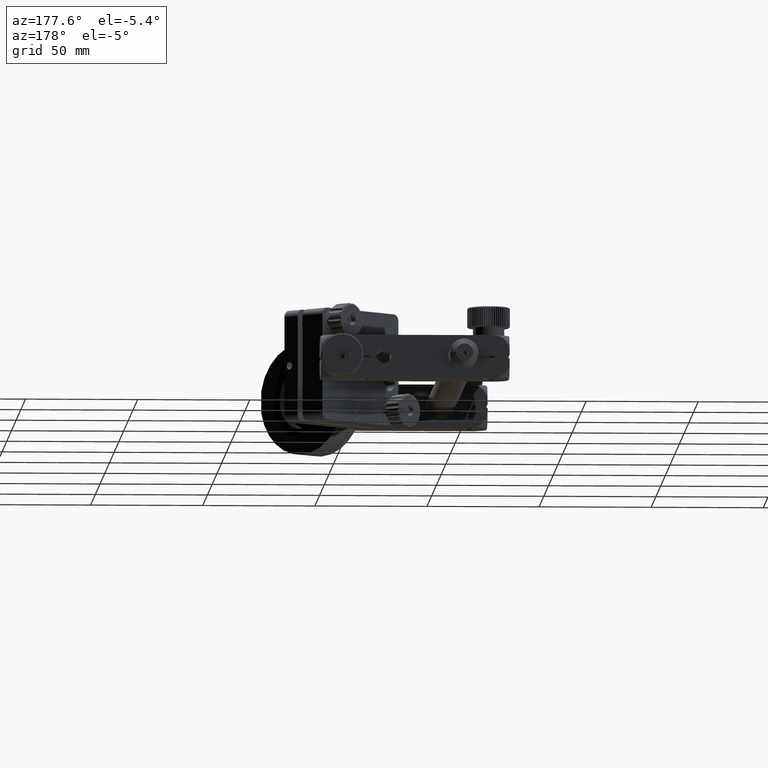
[diagram: clean part render]
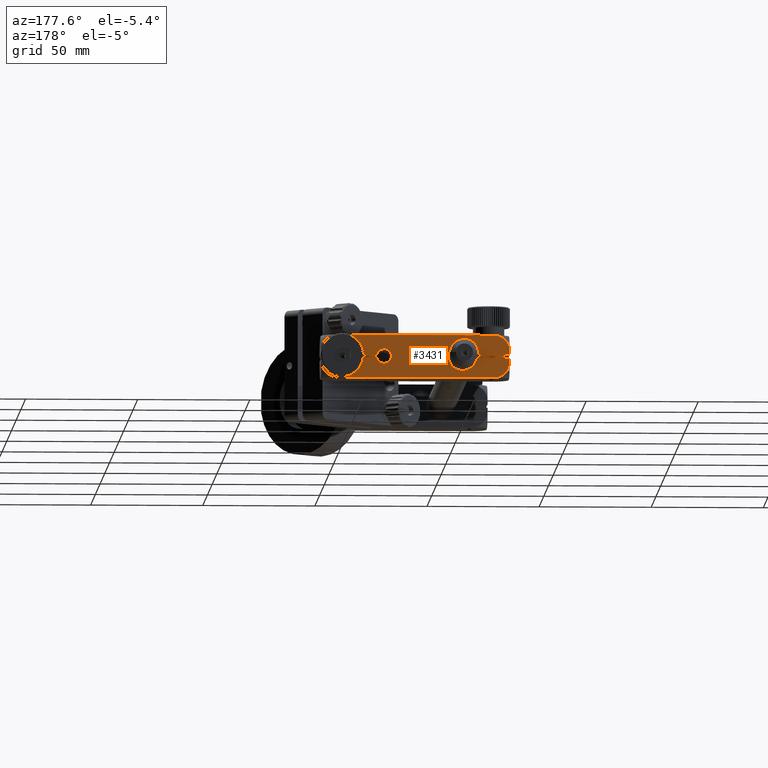
[diagram: same view with one face highlighted and labeled with its STEP entity id]
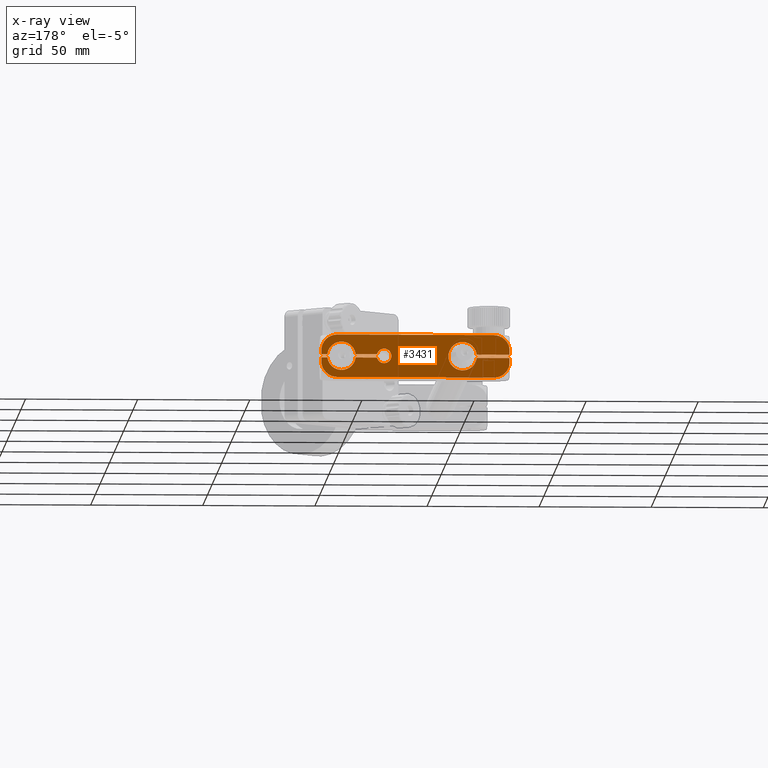
[diagram: x-ray of the same camera — body ghosted, the highlighted face saturated]
A machine part, auxiliary view. The second image highlights one B-rep face of the part: STEP entity #3431.
The next image is the same camera in x-ray: the body ghosted, the highlighted face saturated — about 0% of this face is hidden behind the body in this view.
In plain terms, the highlighted planar face has unit normal (0, -1, 0).
Its self-contained STEP definition (entity closure, byte-faithful):
#73 = VERTEX_POINT ( 'NONE', #27213 ) ;
#155 = VECTOR ( 'NONE', #24674, 1000.000000000000000 ) ;
#686 = ORIENTED_EDGE ( 'NONE', *, *, #20789, .F. ) ;
#1174 = CIRCLE ( 'NONE', #46065, 6.350000000000001400 ) ;
#1353 = EDGE_CURVE ( 'NONE', #16267, #17290, #13387, .T. ) ;
#1825 = ORIENTED_EDGE ( 'NONE', *, *, #6983, .F. ) ;
#1932 = ORIENTED_EDGE ( 'NONE', *, *, #9368, .F. ) ;
#2099 = DIRECTION ( 'NONE',  ( 0.0000000000000000000, 0.0000000000000000000, -1.000000000000000000 ) ) ;
#2274 = ORIENTED_EDGE ( 'NONE', *, *, #29876, .F. ) ;
#2321 = LINE ( 'NONE', #37663, #40796 ) ;
#2454 = PLANE ( 'NONE',  #22497 ) ;
#2518 = VECTOR ( 'NONE', #20952, 1000.000000000000000 ) ;
#2850 = DIRECTION ( 'NONE',  ( 0.0000000000000000000, 0.0000000000000000000, -1.000000000000000000 ) ) ;
#3141 = CARTESIAN_POINT ( 'NONE',  ( 35.00000000000000000, 378.9634782757152600, -2.203869509387566800E-013 ) ) ;
#3348 = DIRECTION ( 'NONE',  ( 0.0000000000000000000, 1.000000000000000000, 0.0000000000000000000 ) ) ;
#3368 = VECTOR ( 'NONE', #43156, 1000.000000000000000 ) ;
#3431 = ADVANCED_FACE ( 'NONE', ( #16215 ), #2454, .F. ) ;
#3454 = CIRCLE ( 'NONE', #44990, 6.350000000000001400 ) ;
#3557 = EDGE_CURVE ( 'NONE', #35898, #20543, #3454, .T. ) ;
#3667 = VERTEX_POINT ( 'NONE', #19870 ) ;
#3976 = CARTESIAN_POINT ( 'NONE',  ( 38.16227766016838500, 378.9634782757152600, -0.7500000000002136100 ) ) ;
#3981 = DIRECTION ( 'NONE',  ( 0.0000000000000000000, -1.000000000000000000, 0.0000000000000000000 ) ) ;
#4342 = DIRECTION ( 'NONE',  ( -0.0000000000000000000, -0.0000000000000000000, -1.000000000000000000 ) ) ;
#4632 = VERTEX_POINT ( 'NONE', #31867 ) ;
#4843 = CIRCLE ( 'NONE', #19032, 3.250000000000001300 ) ;
#5193 = DIRECTION ( 'NONE',  ( 0.0000000000000000000, 1.000000000000000000, 0.0000000000000000000 ) ) ;
#5578 = DIRECTION ( 'NONE',  ( 1.000000000000000000, 0.0000000000000000000, 0.0000000000000000000 ) ) ;
#5679 = CARTESIAN_POINT ( 'NONE',  ( 60.92893218813449600, 378.9634782757152600, 7.428932188134345100 ) ) ;
#5964 = ORIENTED_EDGE ( 'NONE', *, *, #15962, .T. ) ;
#6036 = ORIENTED_EDGE ( 'NONE', *, *, #9998, .F. ) ;
#6041 = ORIENTED_EDGE ( 'NONE', *, *, #18156, .F. ) ;
#6135 = EDGE_CURVE ( 'NONE', #33138, #4632, #34138, .T. ) ;
#6331 = EDGE_CURVE ( 'NONE', #27148, #29983, #16344, .T. ) ;
#6722 = AXIS2_PLACEMENT_3D ( 'NONE', #31456, #15893, #20117 ) ;
#6793 = VERTEX_POINT ( 'NONE', #40424 ) ;
#6856 = EDGE_CURVE ( 'NONE', #29983, #43492, #2321, .T. ) ;
#6983 = EDGE_CURVE ( 'NONE', #3667, #38706, #22091, .T. ) ;
#7066 = EDGE_CURVE ( 'NONE', #48289, #35898, #37864, .T. ) ;
#7375 = DIRECTION ( 'NONE',  ( 0.0000000000000000000, 0.0000000000000000000, 1.000000000000000000 ) ) ;
#7789 = CARTESIAN_POINT ( 'NONE',  ( 55.92893218813449600, 378.9634782757152600, 2.428932188134338400 ) ) ;
#8000 = CARTESIAN_POINT ( 'NONE',  ( 60.30555310817379000, 378.9634782757152600, 0.7499999999997877300 ) ) ;
#8143 = CARTESIAN_POINT ( 'NONE',  ( -21.00000000000000000, 378.9634782757152600, -0.7500000000002135000 ) ) ;
#8484 = VERTEX_POINT ( 'NONE', #41694 ) ;
#8776 = AXIS2_PLACEMENT_3D ( 'NONE', #9458, #29386, #47783 ) ;
#9291 = CARTESIAN_POINT ( 'NONE',  ( 0.0000000000000000000, 378.9634782757152600, 6.349999999999785600 ) ) ;
#9368 = EDGE_CURVE ( 'NONE', #43492, #3667, #10875, .T. ) ;
#9451 = EDGE_CURVE ( 'NONE', #73, #33138, #14973, .T. ) ;
#9458 = CARTESIAN_POINT ( 'NONE',  ( -13.92893218813448900, 378.9634782757152600, 2.428932188134338400 ) ) ;
#9998 = EDGE_CURVE ( 'NONE', #30004, #29827, #16636, .T. ) ;
#10875 = CIRCLE ( 'NONE', #38574, 7.071067811865467500 ) ;
#11219 = DIRECTION ( 'NONE',  ( 0.0000000000000000000, 0.0000000000000000000, 1.000000000000000000 ) ) ;
#11240 = CARTESIAN_POINT ( 'NONE',  ( -21.00000000000000000, 378.9634782757152600, -9.500000000000213200 ) ) ;
#11381 = DIRECTION ( 'NONE',  ( 0.0000000000000000000, 1.000000000000000000, 0.0000000000000000000 ) ) ;
#12376 = CARTESIAN_POINT ( 'NONE',  ( 35.00000000000000000, 378.9634782757152600, -2.203869509387566800E-013 ) ) ;
#12607 = EDGE_CURVE ( 'NONE', #46642, #18653, #34006, .T. ) ;
#12828 = AXIS2_PLACEMENT_3D ( 'NONE', #21075, #29109, #2850 ) ;
#13003 = DIRECTION ( 'NONE',  ( -0.0000000000000000000, -0.0000000000000000000, -1.000000000000000000 ) ) ;
#13387 = CIRCLE ( 'NONE', #22132, 7.071067811865467500 ) ;
#13610 = VERTEX_POINT ( 'NONE', #35051 ) ;
#14119 = AXIS2_PLACEMENT_3D ( 'NONE', #41708, #38286, #30336 ) ;
#14193 = CARTESIAN_POINT ( 'NONE',  ( 0.0000000000000000000, 378.9634782757152600, -2.161008287003783600E-013 ) ) ;
#14424 = AXIS2_PLACEMENT_3D ( 'NONE', #17416, #39295, #16933 ) ;
#14679 = LINE ( 'NONE', #21076, #155 ) ;
#14862 = DIRECTION ( 'NONE',  ( -1.000000000000000000, -0.0000000000000000000, -0.0000000000000000000 ) ) ;
#14973 = CIRCLE ( 'NONE', #6722, 7.071067811865467500 ) ;
#15025 = CARTESIAN_POINT ( 'NONE',  ( -6.305553108173777200, 378.9634782757152600, -0.7500000000002135000 ) ) ;
#15165 = DIRECTION ( 'NONE',  ( 0.0000000000000000000, 0.0000000000000000000, -1.000000000000000000 ) ) ;
#15266 = DIRECTION ( 'NONE',  ( 0.0000000000000000000, 0.0000000000000000000, -1.000000000000000000 ) ) ;
#15777 = DIRECTION ( 'NONE',  ( 0.0000000000000000000, 1.000000000000000000, 0.0000000000000000000 ) ) ;
#15893 = DIRECTION ( 'NONE',  ( 0.0000000000000000000, -1.000000000000000000, 0.0000000000000000000 ) ) ;
#15962 = EDGE_CURVE ( 'NONE', #46642, #4632, #31702, .T. ) ;
#16149 = EDGE_CURVE ( 'NONE', #6793, #8484, #22301, .T. ) ;
#16187 = ORIENTED_EDGE ( 'NONE', *, *, #9451, .F. ) ;
#16215 = FACE_OUTER_BOUND ( 'NONE', #37718, .T. ) ;
#16267 = VERTEX_POINT ( 'NONE', #5679 ) ;
#16344 = LINE ( 'NONE', #29581, #44958 ) ;
#16604 = DIRECTION ( 'NONE',  ( 0.0000000000000000000, 0.0000000000000000000, 1.000000000000000000 ) ) ;
#16626 = CARTESIAN_POINT ( 'NONE',  ( 60.30555310817379000, 378.9634782757152600, 0.7499999999997871700 ) ) ;
#16636 = LINE ( 'NONE', #16626, #31884 ) ;
#16694 = CIRCLE ( 'NONE', #30617, 3.250000000000001300 ) ;
#16799 = ORIENTED_EDGE ( 'NONE', *, *, #1353, .F. ) ;
#16933 = DIRECTION ( 'NONE',  ( 0.0000000000000000000, 0.0000000000000000000, 1.000000000000000000 ) ) ;
#17090 = CARTESIAN_POINT ( 'NONE',  ( 63.00000000000000000, 378.9634782757152000, 2.428932188134349100 ) ) ;
#17229 = CARTESIAN_POINT ( 'NONE',  ( -21.00000000000000000, 378.9634782757152600, 9.499999999999786800 ) ) ;
#17290 = VERTEX_POINT ( 'NONE', #28934 ) ;
#17416 = CARTESIAN_POINT ( 'NONE',  ( 54.00000000000000700, 378.9634782757152600, -2.227137030110192000E-013 ) ) ;
#17585 = ORIENTED_EDGE ( 'NONE', *, *, #19438, .T. ) ;
#17835 = AXIS2_PLACEMENT_3D ( 'NONE', #42194, #15777, #23790 ) ;
#18155 = EDGE_CURVE ( 'NONE', #73, #38706, #43117, .T. ) ;
#18156 = EDGE_CURVE ( 'NONE', #17290, #25836, #27412, .T. ) ;
#18168 = CARTESIAN_POINT ( 'NONE',  ( 55.92893218813449600, 378.9634782757152600, 2.428932188134338400 ) ) ;
#18374 = DIRECTION ( 'NONE',  ( 0.0000000000000000000, 0.0000000000000000000, 1.000000000000000000 ) ) ;
#18413 = CARTESIAN_POINT ( 'NONE',  ( -21.00000000000000000, 378.9634782757152600, 9.499999999999786800 ) ) ;
#18418 = DIRECTION ( 'NONE',  ( -1.000000000000000000, -0.0000000000000000000, -2.213493669684004800E-017 ) ) ;
#18653 = VERTEX_POINT ( 'NONE', #29213 ) ;
#18705 = ORIENTED_EDGE ( 'NONE', *, *, #6856, .F. ) ;
#19032 = AXIS2_PLACEMENT_3D ( 'NONE', #3141, #48119, #11219 ) ;
#19053 = ORIENTED_EDGE ( 'NONE', *, *, #37350, .F. ) ;
#19438 = EDGE_CURVE ( 'NONE', #21108, #29827, #38982, .T. ) ;
#19455 = CARTESIAN_POINT ( 'NONE',  ( 7.776507174585694100E-016, 378.9634782757152600, -6.350000000000217200 ) ) ;
#19870 = CARTESIAN_POINT ( 'NONE',  ( -18.92893218813449600, 378.9634782757152600, -7.428932188134768700 ) ) ;
#20117 = DIRECTION ( 'NONE',  ( 0.0000000000000000000, 0.0000000000000000000, -1.000000000000000000 ) ) ;
#20543 = VERTEX_POINT ( 'NONE', #19455 ) ;
#20593 = CARTESIAN_POINT ( 'NONE',  ( 63.00000000000000000, 378.9634782757152600, -0.7500000000002131600 ) ) ;
#20789 = EDGE_CURVE ( 'NONE', #33176, #34635, #44131, .T. ) ;
#20952 = DIRECTION ( 'NONE',  ( -1.000000000000000000, -0.0000000000000000000, -0.0000000000000000000 ) ) ;
#21075 = CARTESIAN_POINT ( 'NONE',  ( 55.92893218813449600, 378.9634782757152600, -2.428932188134764300 ) ) ;
#21076 = CARTESIAN_POINT ( 'NONE',  ( -21.00000000000000000, 378.9634782757152600, 0.7499999999997871700 ) ) ;
#21108 = VERTEX_POINT ( 'NONE', #17090 ) ;
#21318 = CARTESIAN_POINT ( 'NONE',  ( 38.16227766016838500, 378.9634782757152600, -0.7500000000002131600 ) ) ;
#21504 = DIRECTION ( 'NONE',  ( 0.0000000000000000000, -1.000000000000000000, 0.0000000000000000000 ) ) ;
#21560 = ORIENTED_EDGE ( 'NONE', *, *, #30088, .F. ) ;
#21839 = CARTESIAN_POINT ( 'NONE',  ( 35.00000000000000000, 378.9634782757152600, -3.250000000000221600 ) ) ;
#22038 = DIRECTION ( 'NONE',  ( 0.0000000000000000000, 0.0000000000000000000, 1.000000000000000000 ) ) ;
#22091 = CIRCLE ( 'NONE', #14119, 7.071067811865467500 ) ;
#22132 = AXIS2_PLACEMENT_3D ( 'NONE', #7789, #45140, #15266 ) ;
#22301 = CIRCLE ( 'NONE', #17835, 6.350000000000003200 ) ;
#22341 = CARTESIAN_POINT ( 'NONE',  ( 63.00000000000000000, 378.9634782757152600, 9.499999999999786800 ) ) ;
#22342 = VECTOR ( 'NONE', #44998, 1000.000000000000000 ) ;
#22380 = CARTESIAN_POINT ( 'NONE',  ( 38.16227766016837800, 378.9634782757152600, 0.7499999999997870600 ) ) ;
#22393 = CARTESIAN_POINT ( 'NONE',  ( 0.0000000000000000000, 378.9634782757152600, -2.161008287003783600E-013 ) ) ;
#22490 = CARTESIAN_POINT ( 'NONE',  ( -21.00000000000000000, 378.9634782757152000, 2.428932188134349100 ) ) ;
#22497 = AXIS2_PLACEMENT_3D ( 'NONE', #17229, #21504, #43835 ) ;
#22664 = VECTOR ( 'NONE', #13003, 1000.000000000000000 ) ;
#23220 = CARTESIAN_POINT ( 'NONE',  ( -21.00000000000000000, 378.9634782757152600, 0.7499999999997871700 ) ) ;
#23456 = EDGE_CURVE ( 'NONE', #34635, #42673, #4843, .T. ) ;
#23790 = DIRECTION ( 'NONE',  ( 0.0000000000000000000, 0.0000000000000000000, 1.000000000000000000 ) ) ;
#23827 = CIRCLE ( 'NONE', #8776, 7.071067811865467500 ) ;
#24401 = DIRECTION ( 'NONE',  ( 0.0000000000000000000, -1.000000000000000000, 0.0000000000000000000 ) ) ;
#24674 = DIRECTION ( 'NONE',  ( 1.000000000000000000, 0.0000000000000000000, -2.213493669684004800E-017 ) ) ;
#24761 = CARTESIAN_POINT ( 'NONE',  ( -6.305553108173780800, 378.9634782757152600, 0.7499999999997868400 ) ) ;
#25642 = ORIENTED_EDGE ( 'NONE', *, *, #6331, .F. ) ;
#25664 = CARTESIAN_POINT ( 'NONE',  ( 35.00000000000000000, 378.9634782757152600, -2.203869509387566800E-013 ) ) ;
#25805 = CARTESIAN_POINT ( 'NONE',  ( 63.00000000000000000, 378.9634782757152600, 0.7499999999997871700 ) ) ;
#25836 = VERTEX_POINT ( 'NONE', #28146 ) ;
#26159 = DIRECTION ( 'NONE',  ( 0.0000000000000000000, 1.000000000000000000, 0.0000000000000000000 ) ) ;
#26195 = CIRCLE ( 'NONE', #14424, 6.350000000000003200 ) ;
#26302 = CARTESIAN_POINT ( 'NONE',  ( -13.92893218813448900, 378.9634782757152600, 2.428932188134338400 ) ) ;
#26364 = CARTESIAN_POINT ( 'NONE',  ( -21.00000000000000000, 378.9634782757152600, 9.499999999999786800 ) ) ;
#26722 = ORIENTED_EDGE ( 'NONE', *, *, #16149, .F. ) ;
#27035 = DIRECTION ( 'NONE',  ( 0.0000000000000000000, 0.0000000000000000000, -1.000000000000000000 ) ) ;
#27140 = EDGE_CURVE ( 'NONE', #20543, #27148, #1174, .T. ) ;
#27148 = VERTEX_POINT ( 'NONE', #15025 ) ;
#27213 = CARTESIAN_POINT ( 'NONE',  ( 55.92893218813449600, 378.9634782757152600, -9.500000000000213200 ) ) ;
#27272 = DIRECTION ( 'NONE',  ( 0.0000000000000000000, 1.000000000000000000, 0.0000000000000000000 ) ) ;
#27388 = CARTESIAN_POINT ( 'NONE',  ( 0.0000000000000000000, 378.9634782757152600, -2.161008287003783600E-013 ) ) ;
#27412 = LINE ( 'NONE', #18413, #47193 ) ;
#27413 = AXIS2_PLACEMENT_3D ( 'NONE', #18168, #24401, #2099 ) ;
#28146 = CARTESIAN_POINT ( 'NONE',  ( -13.92893218813448900, 378.9634782757152600, 9.499999999999786800 ) ) ;
#28934 = CARTESIAN_POINT ( 'NONE',  ( 55.92893218813449600, 378.9634782757152600, 9.499999999999786800 ) ) ;
#29081 = CARTESIAN_POINT ( 'NONE',  ( 38.16227766016837800, 378.9634782757152600, 0.7499999999997870600 ) ) ;
#29104 = VECTOR ( 'NONE', #36717, 1000.000000000000000 ) ;
#29109 = DIRECTION ( 'NONE',  ( 0.0000000000000000000, -1.000000000000000000, 0.0000000000000000000 ) ) ;
#29213 = CARTESIAN_POINT ( 'NONE',  ( 60.30555310817379000, 378.9634782757152600, -0.7500000000002131600 ) ) ;
#29293 = ORIENTED_EDGE ( 'NONE', *, *, #3557, .F. ) ;
#29386 = DIRECTION ( 'NONE',  ( 0.0000000000000000000, -1.000000000000000000, 0.0000000000000000000 ) ) ;
#29581 = CARTESIAN_POINT ( 'NONE',  ( -21.00000000000000000, 378.9634782757152600, -0.7500000000002135000 ) ) ;
#29619 = ORIENTED_EDGE ( 'NONE', *, *, #30934, .F. ) ;
#29827 = VERTEX_POINT ( 'NONE', #25805 ) ;
#29876 = EDGE_CURVE ( 'NONE', #13610, #34617, #42404, .T. ) ;
#29983 = VERTEX_POINT ( 'NONE', #8143 ) ;
#30004 = VERTEX_POINT ( 'NONE', #8000 ) ;
#30088 = EDGE_CURVE ( 'NONE', #42673, #43402, #16694, .T. ) ;
#30180 = DIRECTION ( 'NONE',  ( -0.0000000000000000000, -0.0000000000000000000, -1.000000000000000000 ) ) ;
#30307 = ORIENTED_EDGE ( 'NONE', *, *, #12607, .F. ) ;
#30336 = DIRECTION ( 'NONE',  ( 0.0000000000000000000, 0.0000000000000000000, -1.000000000000000000 ) ) ;
#30617 = AXIS2_PLACEMENT_3D ( 'NONE', #12376, #27272, #16604 ) ;
#30867 = ORIENTED_EDGE ( 'NONE', *, *, #6135, .F. ) ;
#30934 = EDGE_CURVE ( 'NONE', #18653, #32449, #42346, .T. ) ;
#31456 = CARTESIAN_POINT ( 'NONE',  ( 55.92893218813449600, 378.9634782757152600, -2.428932188134764300 ) ) ;
#31519 = EDGE_CURVE ( 'NONE', #34617, #39117, #46965, .T. ) ;
#31558 = AXIS2_PLACEMENT_3D ( 'NONE', #33775, #11381, #18374 ) ;
#31702 = LINE ( 'NONE', #22341, #22342 ) ;
#31796 = CARTESIAN_POINT ( 'NONE',  ( 60.30555310817379000, 378.9634782757152600, -0.7500000000002131600 ) ) ;
#31797 = DIRECTION ( 'NONE',  ( 0.0000000000000000000, 0.0000000000000000000, 1.000000000000000000 ) ) ;
#31867 = CARTESIAN_POINT ( 'NONE',  ( 63.00000000000000000, 378.9634782757152000, -2.428932188134775000 ) ) ;
#31884 = VECTOR ( 'NONE', #5578, 1000.000000000000000 ) ;
#32449 = VERTEX_POINT ( 'NONE', #37513 ) ;
#32539 = LINE ( 'NONE', #21318, #3368 ) ;
#32770 = AXIS2_PLACEMENT_3D ( 'NONE', #25664, #3348, #7375 ) ;
#33025 = DIRECTION ( 'NONE',  ( -1.000000000000000000, -0.0000000000000000000, -0.0000000000000000000 ) ) ;
#33138 = VERTEX_POINT ( 'NONE', #47974 ) ;
#33169 = LINE ( 'NONE', #29081, #29104 ) ;
#33176 = VERTEX_POINT ( 'NONE', #3976 ) ;
#33272 = ORIENTED_EDGE ( 'NONE', *, *, #7066, .F. ) ;
#33775 = CARTESIAN_POINT ( 'NONE',  ( 54.00000000000000700, 378.9634782757152600, -2.227137030110192000E-013 ) ) ;
#34006 = LINE ( 'NONE', #31796, #2518 ) ;
#34138 = CIRCLE ( 'NONE', #12828, 7.071067811865467500 ) ;
#34342 = CARTESIAN_POINT ( 'NONE',  ( -13.92893218813448900, 378.9634782757152600, -2.428932188134764300 ) ) ;
#34617 = VERTEX_POINT ( 'NONE', #22490 ) ;
#34635 = VERTEX_POINT ( 'NONE', #21839 ) ;
#35051 = CARTESIAN_POINT ( 'NONE',  ( -18.92893218813449600, 378.9634782757152600, 7.428932188134344200 ) ) ;
#35205 = ORIENTED_EDGE ( 'NONE', *, *, #43155, .F. ) ;
#35269 = CIRCLE ( 'NONE', #27413, 7.071067811865467500 ) ;
#35898 = VERTEX_POINT ( 'NONE', #9291 ) ;
#35969 = EDGE_CURVE ( 'NONE', #8484, #30004, #26195, .T. ) ;
#36717 = DIRECTION ( 'NONE',  ( 1.000000000000000000, 0.0000000000000000000, 1.137413894084777200E-017 ) ) ;
#36815 = AXIS2_PLACEMENT_3D ( 'NONE', #26302, #3981, #15165 ) ;
#37350 = EDGE_CURVE ( 'NONE', #32449, #33176, #32539, .T. ) ;
#37406 = DIRECTION ( 'NONE',  ( 0.0000000000000000000, 0.0000000000000000000, 1.000000000000000000 ) ) ;
#37513 = CARTESIAN_POINT ( 'NONE',  ( 47.69444689182622500, 378.9634782757152600, -0.7500000000002169400 ) ) ;
#37620 = ORIENTED_EDGE ( 'NONE', *, *, #45737, .F. ) ;
#37641 = ORIENTED_EDGE ( 'NONE', *, *, #23456, .F. ) ;
#37663 = CARTESIAN_POINT ( 'NONE',  ( -21.00000000000000000, 378.9634782757152600, 9.499999999999786800 ) ) ;
#37718 = EDGE_LOOP ( 'NONE', ( #46384, #2274, #37620, #6041, #16799, #46694, #17585, #6036, #46910, #26722, #38389, #21560, #37641, #686, #19053, #29619, #30307, #5964, #30867, #16187, #47373, #1825, #1932, #18705, #25642, #40420, #29293, #33272, #35205 ) ) ;
#37864 = CIRCLE ( 'NONE', #42550, 6.350000000000001400 ) ;
#38100 = CARTESIAN_POINT ( 'NONE',  ( -13.92893218813447500, 378.9634782757152600, -9.500000000000229200 ) ) ;
#38286 = DIRECTION ( 'NONE',  ( 0.0000000000000000000, -1.000000000000000000, 0.0000000000000000000 ) ) ;
#38389 = ORIENTED_EDGE ( 'NONE', *, *, #45820, .F. ) ;
#38574 = AXIS2_PLACEMENT_3D ( 'NONE', #34342, #45279, #27035 ) ;
#38706 = VERTEX_POINT ( 'NONE', #38100 ) ;
#38982 = LINE ( 'NONE', #39266, #22664 ) ;
#39117 = VERTEX_POINT ( 'NONE', #23220 ) ;
#39266 = CARTESIAN_POINT ( 'NONE',  ( 63.00000000000000000, 378.9634782757152600, 9.499999999999786800 ) ) ;
#39295 = DIRECTION ( 'NONE',  ( 0.0000000000000000000, 1.000000000000000000, 0.0000000000000000000 ) ) ;
#39969 = VECTOR ( 'NONE', #4342, 1000.000000000000000 ) ;
#40420 = ORIENTED_EDGE ( 'NONE', *, *, #27140, .F. ) ;
#40424 = CARTESIAN_POINT ( 'NONE',  ( 47.69444689182622500, 378.9634782757152600, 0.7499999999997871700 ) ) ;
#40796 = VECTOR ( 'NONE', #30180, 1000.000000000000000 ) ;
#40798 = VECTOR ( 'NONE', #14862, 1000.000000000000000 ) ;
#41173 = EDGE_CURVE ( 'NONE', #21108, #16267, #35269, .T. ) ;
#41694 = CARTESIAN_POINT ( 'NONE',  ( 54.00000000000000700, 378.9634782757152600, 6.349999999999780300 ) ) ;
#41708 = CARTESIAN_POINT ( 'NONE',  ( -13.92893218813448900, 378.9634782757152600, -2.428932188134764300 ) ) ;
#42194 = CARTESIAN_POINT ( 'NONE',  ( 54.00000000000000700, 378.9634782757152600, -2.227137030110192000E-013 ) ) ;
#42346 = CIRCLE ( 'NONE', #31558, 6.350000000000000500 ) ;
#42404 = CIRCLE ( 'NONE', #36815, 7.071067811865467500 ) ;
#42550 = AXIS2_PLACEMENT_3D ( 'NONE', #27388, #5193, #31797 ) ;
#42673 = VERTEX_POINT ( 'NONE', #47813 ) ;
#43117 = LINE ( 'NONE', #11240, #40798 ) ;
#43155 = EDGE_CURVE ( 'NONE', #39117, #48289, #14679, .T. ) ;
#43156 = DIRECTION ( 'NONE',  ( -1.000000000000000000, -0.0000000000000000000, -0.0000000000000000000 ) ) ;
#43402 = VERTEX_POINT ( 'NONE', #22380 ) ;
#43492 = VERTEX_POINT ( 'NONE', #45827 ) ;
#43835 = DIRECTION ( 'NONE',  ( 0.0000000000000000000, -0.0000000000000000000, -1.000000000000000000 ) ) ;
#44131 = CIRCLE ( 'NONE', #32770, 3.250000000000001300 ) ;
#44368 = DIRECTION ( 'NONE',  ( 0.0000000000000000000, 1.000000000000000000, 0.0000000000000000000 ) ) ;
#44958 = VECTOR ( 'NONE', #18418, 1000.000000000000000 ) ;
#44990 = AXIS2_PLACEMENT_3D ( 'NONE', #14193, #44368, #22038 ) ;
#44998 = DIRECTION ( 'NONE',  ( -0.0000000000000000000, -0.0000000000000000000, -1.000000000000000000 ) ) ;
#45140 = DIRECTION ( 'NONE',  ( 0.0000000000000000000, -1.000000000000000000, 0.0000000000000000000 ) ) ;
#45279 = DIRECTION ( 'NONE',  ( 0.0000000000000000000, -1.000000000000000000, 0.0000000000000000000 ) ) ;
#45737 = EDGE_CURVE ( 'NONE', #25836, #13610, #23827, .T. ) ;
#45820 = EDGE_CURVE ( 'NONE', #43402, #6793, #33169, .T. ) ;
#45827 = CARTESIAN_POINT ( 'NONE',  ( -21.00000000000000000, 378.9634782757152000, -2.428932188134775000 ) ) ;
#46065 = AXIS2_PLACEMENT_3D ( 'NONE', #22393, #26159, #37406 ) ;
#46384 = ORIENTED_EDGE ( 'NONE', *, *, #31519, .F. ) ;
#46642 = VERTEX_POINT ( 'NONE', #20593 ) ;
#46694 = ORIENTED_EDGE ( 'NONE', *, *, #41173, .F. ) ;
#46910 = ORIENTED_EDGE ( 'NONE', *, *, #35969, .F. ) ;
#46965 = LINE ( 'NONE', #26364, #39969 ) ;
#47193 = VECTOR ( 'NONE', #33025, 1000.000000000000000 ) ;
#47373 = ORIENTED_EDGE ( 'NONE', *, *, #18155, .T. ) ;
#47783 = DIRECTION ( 'NONE',  ( 0.0000000000000000000, 0.0000000000000000000, -1.000000000000000000 ) ) ;
#47813 = CARTESIAN_POINT ( 'NONE',  ( 35.00000000000000000, 378.9634782757152600, 3.249999999999780600 ) ) ;
#47974 = CARTESIAN_POINT ( 'NONE',  ( 60.92893218813449600, 378.9634782757152600, -7.428932188134768700 ) ) ;
#48119 = DIRECTION ( 'NONE',  ( 0.0000000000000000000, 1.000000000000000000, 0.0000000000000000000 ) ) ;
#48289 = VERTEX_POINT ( 'NONE', #24761 ) ;